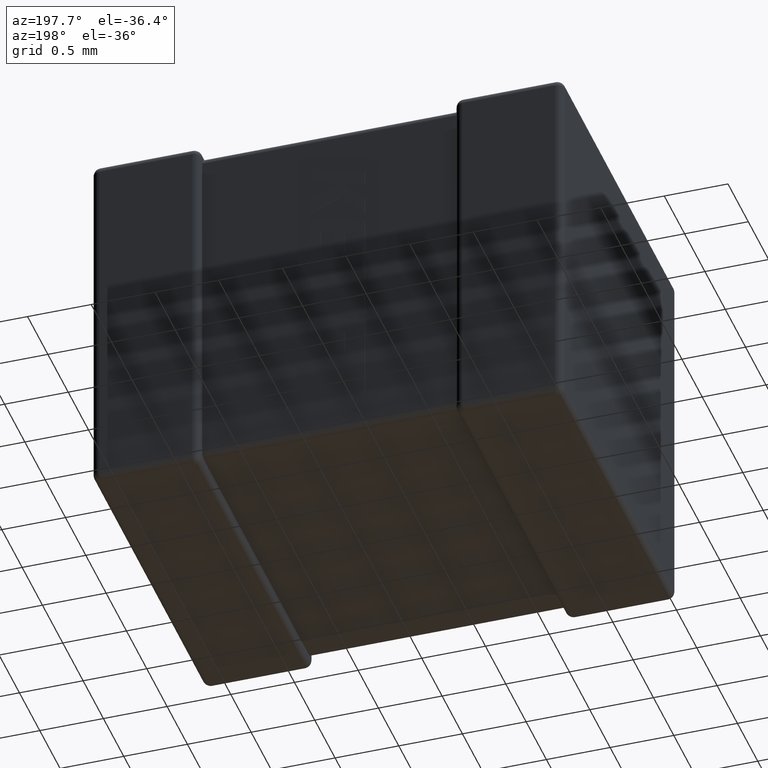
[diagram: clean part render]
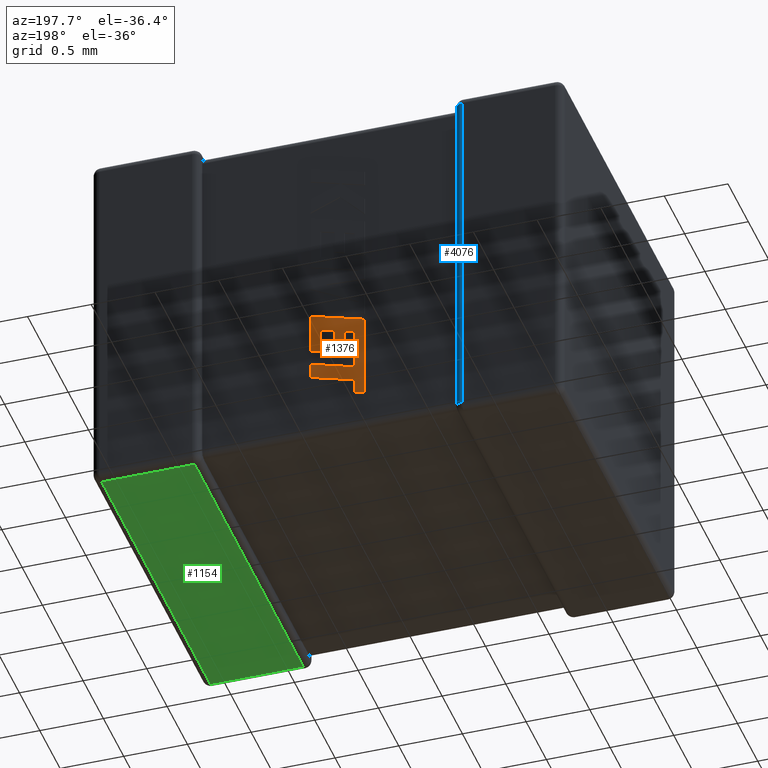
[diagram: same view with three faces highlighted in distinct colors, each labeled with its STEP entity id]
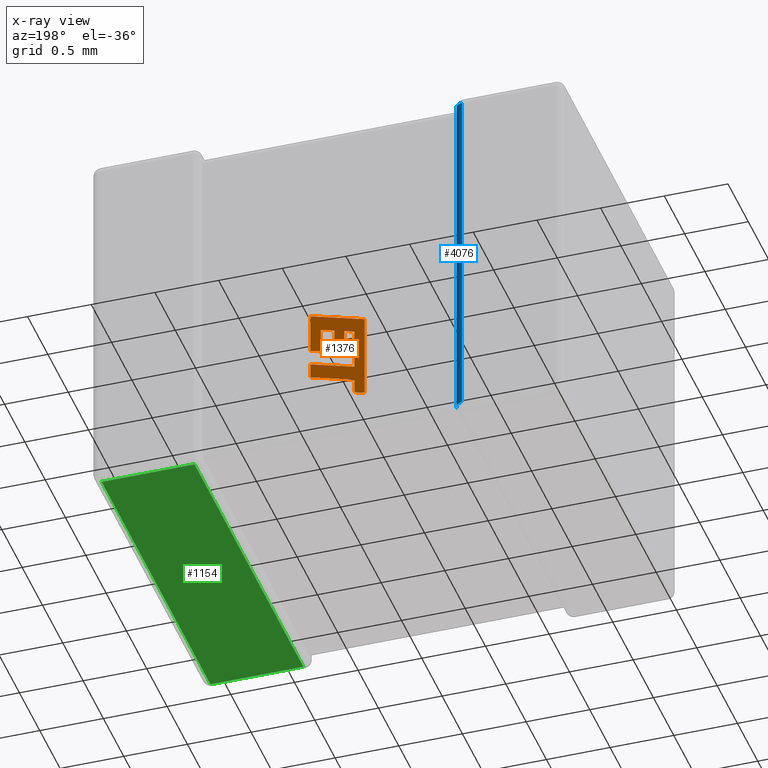
[diagram: x-ray of the same camera — body ghosted, the three highlighted faces saturated]
A machine part, auxiliary view with three faces highlighted in distinct colors.
The next image is the same camera in x-ray (body ghosted, the three faces saturated) — at least one of them is partly hidden behind the body in this view.
Their STEP definitions:

[orange] entity #1376 — the highlighted planar face has unit normal (0, 1, 0).
#47 = LINE ( 'NONE', #3592, #4006 ) ;
#62 = LINE ( 'NONE', #3655, #338 ) ;
#74 = EDGE_CURVE ( 'NONE', #2070, #2353, #47, .T. ) ;
#141 = CARTESIAN_POINT ( 'NONE',  ( 1.571668070840859244, 2.744679999999999787, -2.539415673646348903 ) ) ;
#160 = EDGE_LOOP ( 'NONE', ( #3538, #3382, #1093, #2689, #291, #2789, #1878, #589, #1620, #3119, #2460, #1167, #1811, #3325, #4515, #1012, #516 ) ) ;
#177 = VERTEX_POINT ( 'NONE', #2087 ) ;
#252 = DIRECTION ( 'NONE',  ( 0.000000000000000000, 1.000000000000000000, 0.000000000000000000 ) ) ;
#291 = ORIENTED_EDGE ( 'NONE', *, *, #2871, .T. ) ;
#294 = LINE ( 'NONE', #2991, #941 ) ;
#338 = VECTOR ( 'NONE', #2930, 1000.000000000000227 ) ;
#385 = DIRECTION ( 'NONE',  ( -0.9620200793798762140, 0.000000000000000000, -0.2729786930695083380 ) ) ;
#429 = VECTOR ( 'NONE', #674, 1000.000000000000000 ) ;
#453 = VERTEX_POINT ( 'NONE', #4221 ) ;
#510 = VERTEX_POINT ( 'NONE', #4168 ) ;
#516 = ORIENTED_EDGE ( 'NONE', *, *, #4402, .T. ) ;
#524 = CARTESIAN_POINT ( 'NONE',  ( 1.653994107163574201, 2.744679999999999787, -2.515756594331723939 ) ) ;
#562 = CARTESIAN_POINT ( 'NONE',  ( 1.571668070840859244, 2.744679999999999787, -1.855017605892900212 ) ) ;
#586 = LINE ( 'NONE', #2009, #429 ) ;
#589 = ORIENTED_EDGE ( 'NONE', *, *, #74, .T. ) ;
#621 = VERTEX_POINT ( 'NONE', #3640 ) ;
#674 = DIRECTION ( 'NONE',  ( 0.000000000000000000, 0.000000000000000000, -1.000000000000000000 ) ) ;
#693 = LINE ( 'NONE', #4003, #4353 ) ;
#697 = EDGE_CURVE ( 'NONE', #2318, #3907, #2181, .T. ) ;
#699 = LINE ( 'NONE', #3514, #2361 ) ;
#705 = VECTOR ( 'NONE', #1262, 999.9999999999998863 ) ;
#799 = DIRECTION ( 'NONE',  ( 0.000000000000000000, 0.000000000000000000, 1.000000000000000000 ) ) ;
#817 = CARTESIAN_POINT ( 'NONE',  ( 1.916874536184694167, 2.744679999999999787, -2.077515681823689953 ) ) ;
#828 = EDGE_CURVE ( 'NONE', #3907, #621, #1015, .T. ) ;
#873 = VECTOR ( 'NONE', #799, 1000.000000000000000 ) ;
#888 = VERTEX_POINT ( 'NONE', #1041 ) ;
#941 = VECTOR ( 'NONE', #1559, 1000.000000000000114 ) ;
#945 = DIRECTION ( 'NONE',  ( -0.9610876102172832836, 0.000000000000000000, -0.2762437428917280391 ) ) ;
#980 = DIRECTION ( 'NONE',  ( -0.9601763114346048011, 0.000000000000000000, -0.2793947940814875408 ) ) ;
#1002 = VECTOR ( 'NONE', #3089, 1000.000000000000227 ) ;
#1012 = ORIENTED_EDGE ( 'NONE', *, *, #3048, .T. ) ;
#1015 = LINE ( 'NONE', #3871, #3195 ) ;
#1041 = CARTESIAN_POINT ( 'NONE',  ( 1.653984840483830876, 2.744679999999999787, -2.277613578896279467 ) ) ;
#1093 = ORIENTED_EDGE ( 'NONE', *, *, #4005, .T. ) ;
#1167 = ORIENTED_EDGE ( 'NONE', *, *, #1871, .T. ) ;
#1194 = CARTESIAN_POINT ( 'NONE',  ( 1.653984840484889363, 2.744679999999999787, -2.399030846526291949 ) ) ;
#1262 = DIRECTION ( 'NONE',  ( -0.9610992334305259455, 0.000000000000000000, -0.2762033010288898471 ) ) ;
#1288 = CARTESIAN_POINT ( 'NONE',  ( 1.652832423856959831, 2.744679999999999787, -1.952634682780160613 ) ) ;
#1291 = CARTESIAN_POINT ( 'NONE',  ( -0.8630697648278080614, 2.744679999999998898, 0.006561855759162677285 ) ) ;
#1351 = DIRECTION ( 'NONE',  ( -0.9615323037684311291, 0.000000000000000000, -0.2746918797667187717 ) ) ;
#1365 = EDGE_CURVE ( 'NONE', #3575, #1378, #1709, .T. ) ;
#1376 = ADVANCED_FACE ( 'NONE', ( #4174 ), #1686, .T. ) ;
#1378 = VERTEX_POINT ( 'NONE', #3861 ) ;
#1398 = CARTESIAN_POINT ( 'NONE',  ( 1.653984840483830876, 2.744679999999999787, -2.277613578896279467 ) ) ;
#1436 = VERTEX_POINT ( 'NONE', #4536 ) ;
#1559 = DIRECTION ( 'NONE',  ( 0.004650693823668811122, 0.000000000000000000, -0.9999891854650021505 ) ) ;
#1562 = EDGE_CURVE ( 'NONE', #2353, #510, #693, .T. ) ;
#1603 = CARTESIAN_POINT ( 'NONE',  ( 1.810929984928250747, 2.744679999999999787, -2.090006892864151755 ) ) ;
#1620 = ORIENTED_EDGE ( 'NONE', *, *, #1562, .T. ) ;
#1686 = PLANE ( 'NONE',  #4282 ) ;
#1709 = LINE ( 'NONE', #2805, #3976 ) ;
#1750 = VECTOR ( 'NONE', #4637, 1000.000000000000000 ) ;
#1788 = EDGE_CURVE ( 'NONE', #1378, #888, #294, .T. ) ;
#1811 = ORIENTED_EDGE ( 'NONE', *, *, #3691, .T. ) ;
#1871 = EDGE_CURVE ( 'NONE', #4344, #3210, #2245, .T. ) ;
#1878 = ORIENTED_EDGE ( 'NONE', *, *, #3916, .T. ) ;
#1933 = CARTESIAN_POINT ( 'NONE',  ( 1.916874536184694167, 2.744679999999999787, -1.876829261524544989 ) ) ;
#1985 = VECTOR ( 'NONE', #980, 1000.000000000000114 ) ;
#1988 = CARTESIAN_POINT ( 'NONE',  ( 1.810929984928250747, 2.744679999999999787, -1.907074688672119933 ) ) ;
#2001 = DIRECTION ( 'NONE',  ( 0.000000000000000000, 0.000000000000000000, -1.000000000000000000 ) ) ;
#2009 = CARTESIAN_POINT ( 'NONE',  ( 1.998000000000007548, 2.744679999999999787, -1.732389587493627037 ) ) ;
#2014 = DIRECTION ( 'NONE',  ( 0.000000000000000000, 0.000000000000000000, 1.000000000000000000 ) ) ;
#2065 = DIRECTION ( 'NONE',  ( 0.000000000000000000, 0.000000000000000000, -1.000000000000000000 ) ) ;
#2070 = VERTEX_POINT ( 'NONE', #141 ) ;
#2074 = LINE ( 'NONE', #2760, #4130 ) ;
#2087 = CARTESIAN_POINT ( 'NONE',  ( 1.653994107163574201, 2.744679999999999787, -2.515756594331723939 ) ) ;
#2120 = EDGE_CURVE ( 'NONE', #2745, #453, #699, .T. ) ;
#2152 = DIRECTION ( 'NONE',  ( 0.000000000000000000, 0.000000000000000000, 1.000000000000000000 ) ) ;
#2181 = LINE ( 'NONE', #2373, #2634 ) ;
#2245 = LINE ( 'NONE', #3684, #873 ) ;
#2318 = VERTEX_POINT ( 'NONE', #1988 ) ;
#2353 = VERTEX_POINT ( 'NONE', #562 ) ;
#2361 = VECTOR ( 'NONE', #2065, 1000.000000000000000 ) ;
#2373 = CARTESIAN_POINT ( 'NONE',  ( 1.810929984928250747, 2.744679999999999787, -1.907074688672119933 ) ) ;
#2435 = VERTEX_POINT ( 'NONE', #2947 ) ;
#2441 = CARTESIAN_POINT ( 'NONE',  ( 1.998000000000007548, 2.744679999999999787, -2.300151166603599417 ) ) ;
#2460 = ORIENTED_EDGE ( 'NONE', *, *, #2754, .T. ) ;
#2634 = VECTOR ( 'NONE', #2001, 1000.000000000000000 ) ;
#2676 = EDGE_CURVE ( 'NONE', #510, #2435, #586, .T. ) ;
#2689 = ORIENTED_EDGE ( 'NONE', *, *, #2120, .T. ) ;
#2745 = VERTEX_POINT ( 'NONE', #2898 ) ;
#2754 = EDGE_CURVE ( 'NONE', #2435, #4344, #4359, .T. ) ;
#2760 = CARTESIAN_POINT ( 'NONE',  ( 1.732130095272591985, 2.744679999999999787, -2.112518554438171492 ) ) ;
#2789 = ORIENTED_EDGE ( 'NONE', *, *, #4323, .T. ) ;
#2805 = CARTESIAN_POINT ( 'NONE',  ( 1.652832423856959831, 2.744679999999999787, -1.952634682780160613 ) ) ;
#2871 = EDGE_CURVE ( 'NONE', #453, #3927, #3343, .T. ) ;
#2898 = CARTESIAN_POINT ( 'NONE',  ( 1.998000000000007548, 2.744679999999999787, -2.178705380226704680 ) ) ;
#2930 = DIRECTION ( 'NONE',  ( 7.938847109757213207E-05, 0.000000000000000000, -0.9999999968487351953 ) ) ;
#2947 = CARTESIAN_POINT ( 'NONE',  ( 1.998000000000007548, 2.744679999999999787, -2.054495868036396722 ) ) ;
#2991 = CARTESIAN_POINT ( 'NONE',  ( 1.653382057883783673, 2.744679999999999787, -2.148003653132934510 ) ) ;
#3048 = EDGE_CURVE ( 'NONE', #621, #1436, #2074, .T. ) ;
#3089 = DIRECTION ( 'NONE',  ( -0.9615825319869173438, 0.000000000000000000, -0.2745159998572559434 ) ) ;
#3116 = CARTESIAN_POINT ( 'NONE',  ( 1.916874536184694167, 2.744679999999999787, -1.876829261524544989 ) ) ;
#3119 = ORIENTED_EDGE ( 'NONE', *, *, #2676, .T. ) ;
#3126 = VECTOR ( 'NONE', #385, 1000.000000000000000 ) ;
#3149 = DIRECTION ( 'NONE',  ( 0.002813301676014986867, 0.000000000000000000, -0.9999960426590095430 ) ) ;
#3181 = LINE ( 'NONE', #1398, #1750 ) ;
#3195 = VECTOR ( 'NONE', #1351, 1000.000000000000114 ) ;
#3209 = CARTESIAN_POINT ( 'NONE',  ( 1.998000000000007548, 2.744679999999999787, -2.054495868036396722 ) ) ;
#3210 = VERTEX_POINT ( 'NONE', #1933 ) ;
#3325 = ORIENTED_EDGE ( 'NONE', *, *, #697, .T. ) ;
#3343 = LINE ( 'NONE', #2441, #4427 ) ;
#3382 = ORIENTED_EDGE ( 'NONE', *, *, #1788, .T. ) ;
#3473 = LINE ( 'NONE', #3116, #1002 ) ;
#3514 = CARTESIAN_POINT ( 'NONE',  ( 1.998000000000007548, 2.744679999999999787, -2.178705380226704680 ) ) ;
#3538 = ORIENTED_EDGE ( 'NONE', *, *, #1365, .T. ) ;
#3575 = VERTEX_POINT ( 'NONE', #1288 ) ;
#3592 = CARTESIAN_POINT ( 'NONE',  ( 1.571668070840859244, 2.744679999999999787, -2.539415673646348903 ) ) ;
#3640 = CARTESIAN_POINT ( 'NONE',  ( 1.732130095272591985, 2.744679999999999787, -2.112518554438171492 ) ) ;
#3655 = CARTESIAN_POINT ( 'NONE',  ( 1.653984840484889363, 2.744679999999999787, -2.399030846526291949 ) ) ;
#3684 = CARTESIAN_POINT ( 'NONE',  ( 1.916874536184694167, 2.744679999999999787, -2.077515681823689953 ) ) ;
#3691 = EDGE_CURVE ( 'NONE', #3210, #2318, #3473, .T. ) ;
#3761 = LINE ( 'NONE', #524, #705 ) ;
#3781 = DIRECTION ( 'NONE',  ( 0.000000000000000000, 0.000000000000000000, 1.000000000000000000 ) ) ;
#3861 = CARTESIAN_POINT ( 'NONE',  ( 1.653382057883783673, 2.744679999999999787, -2.148003653132934510 ) ) ;
#3871 = CARTESIAN_POINT ( 'NONE',  ( 1.810929984928250747, 2.744679999999999787, -2.090006892864151755 ) ) ;
#3907 = VERTEX_POINT ( 'NONE', #1603 ) ;
#3916 = EDGE_CURVE ( 'NONE', #177, #2070, #3761, .T. ) ;
#3927 = VERTEX_POINT ( 'NONE', #1194 ) ;
#3976 = VECTOR ( 'NONE', #3149, 1000.000000000000114 ) ;
#3985 = DIRECTION ( 'NONE',  ( 0.9610348236706638403, 0.000000000000000000, 0.2764273280489756845 ) ) ;
#4003 = CARTESIAN_POINT ( 'NONE',  ( 1.571668070840859244, 2.744679999999999787, -1.855017605892900212 ) ) ;
#4005 = EDGE_CURVE ( 'NONE', #888, #2745, #3181, .T. ) ;
#4006 = VECTOR ( 'NONE', #2152, 1000.000000000000000 ) ;
#4130 = VECTOR ( 'NONE', #3781, 1000.000000000000000 ) ;
#4168 = CARTESIAN_POINT ( 'NONE',  ( 1.998000000000007548, 2.744679999999999787, -1.732389587493627037 ) ) ;
#4174 = FACE_OUTER_BOUND ( 'NONE', #160, .T. ) ;
#4207 = LINE ( 'NONE', #4538, #1985 ) ;
#4221 = CARTESIAN_POINT ( 'NONE',  ( 1.998000000000007548, 2.744679999999999787, -2.300151166603599417 ) ) ;
#4282 = AXIS2_PLACEMENT_3D ( 'NONE', #1291, #252, #2014 ) ;
#4323 = EDGE_CURVE ( 'NONE', #3927, #177, #62, .T. ) ;
#4344 = VERTEX_POINT ( 'NONE', #817 ) ;
#4353 = VECTOR ( 'NONE', #3985, 1000.000000000000000 ) ;
#4359 = LINE ( 'NONE', #3209, #3126 ) ;
#4402 = EDGE_CURVE ( 'NONE', #1436, #3575, #4207, .T. ) ;
#4427 = VECTOR ( 'NONE', #945, 1000.000000000000114 ) ;
#4515 = ORIENTED_EDGE ( 'NONE', *, *, #828, .T. ) ;
#4536 = CARTESIAN_POINT ( 'NONE',  ( 1.732130095272591985, 2.744679999999999787, -1.929560424112802597 ) ) ;
#4538 = CARTESIAN_POINT ( 'NONE',  ( 1.732130095272591985, 2.744679999999999787, -1.929560424112802597 ) ) ;
#4637 = DIRECTION ( 'NONE',  ( 0.9610664548998939516, 0.000000000000000000, 0.2763173343569855223 ) ) ;

[blue] entity #4076 — the highlighted cylindrical surface (edge-blend (fillet) strip) has radius 0.0603 mm, axis along (0, 0, 1).
#36 = AXIS2_PLACEMENT_3D ( 'NONE', #144, #3294, #2579 ) ;
#38 = CARTESIAN_POINT ( 'NONE',  ( 0.8499999999999999778, 2.739679999999999893, -2.899999999999999911 ) ) ;
#65 = DIRECTION ( 'NONE',  ( 0.000000000000000000, 0.000000000000000000, -1.000000000000000000 ) ) ;
#144 = CARTESIAN_POINT ( 'NONE',  ( 0.7896799999999999375, 2.739679999999999893, -2.899999999999999911 ) ) ;
#168 = ORIENTED_EDGE ( 'NONE', *, *, #959, .F. ) ;
#333 = VECTOR ( 'NONE', #3003, 1000.000000000000000 ) ;
#427 = CARTESIAN_POINT ( 'NONE',  ( 0.7896800000000000486, 2.799999999999999822, 0.000000000000000000 ) ) ;
#445 = FACE_OUTER_BOUND ( 'NONE', #4066, .T. ) ;
#521 = VERTEX_POINT ( 'NONE', #1637 ) ;
#622 = LINE ( 'NONE', #2863, #2069 ) ;
#648 = VECTOR ( 'NONE', #2271, 1000.000000000000000 ) ;
#735 = DIRECTION ( 'NONE',  ( 0.000000000000000000, 0.000000000000000000, 1.000000000000000000 ) ) ;
#739 = DIRECTION ( 'NONE',  ( -0.000000000000000000, 1.123385871690053781E-16, 1.000000000000000000 ) ) ;
#777 = EDGE_CURVE ( 'NONE', #1891, #2216, #4099, .T. ) ;
#800 = CARTESIAN_POINT ( 'NONE',  ( 0.7896799999999999375, 2.799999999999999822, -0.06031999999999999862 ) ) ;
#846 = CARTESIAN_POINT ( 'NONE',  ( 0.8499999999999999778, 2.739679999999999893, -2.899999999999999911 ) ) ;
#959 = EDGE_CURVE ( 'NONE', #1405, #1891, #622, .T. ) ;
#965 = ORIENTED_EDGE ( 'NONE', *, *, #3816, .F. ) ;
#1076 = ORIENTED_EDGE ( 'NONE', *, *, #4550, .F. ) ;
#1082 = CARTESIAN_POINT ( 'NONE',  ( 0.8499999999999999778, 2.739679999999999893, -0.1206399999999999834 ) ) ;
#1138 = CARTESIAN_POINT ( 'NONE',  ( 0.7896799999999999375, 2.739679999999999893, -2.839679999999999982 ) ) ;
#1405 = VERTEX_POINT ( 'NONE', #3123 ) ;
#1440 = CARTESIAN_POINT ( 'NONE',  ( 0.8500000000000000888, 2.739679999999999893, -0.06031999999999999168 ) ) ;
#1491 = ORIENTED_EDGE ( 'NONE', *, *, #3216, .F. ) ;
#1510 = DIRECTION ( 'NONE',  ( -1.000000000000000000, 0.000000000000000000, 0.000000000000000000 ) ) ;
#1572 = LINE ( 'NONE', #38, #333 ) ;
#1593 = ORIENTED_EDGE ( 'NONE', *, *, #1820, .F. ) ;
#1637 = CARTESIAN_POINT ( 'NONE',  ( 0.7896799999999999375, 2.799999999999999822, -2.839679999999999982 ) ) ;
#1820 = EDGE_CURVE ( 'NONE', #521, #1405, #2666, .T. ) ;
#1891 = VERTEX_POINT ( 'NONE', #2552 ) ;
#2069 = VECTOR ( 'NONE', #735, 1000.000000000000000 ) ;
#2182 = DIRECTION ( 'NONE',  ( 0.000000000000000000, -1.000000000000000000, 1.123385871690053535E-16 ) ) ;
#2195 = VERTEX_POINT ( 'NONE', #1440 ) ;
#2216 = VERTEX_POINT ( 'NONE', #1082 ) ;
#2246 = LINE ( 'NONE', #427, #3583 ) ;
#2271 = DIRECTION ( 'NONE',  ( -0.000000000000000000, -0.000000000000000000, 1.000000000000000000 ) ) ;
#2552 = CARTESIAN_POINT ( 'NONE',  ( 0.8499999999999999778, 2.739679999999999893, -2.779359999999999609 ) ) ;
#2579 = DIRECTION ( 'NONE',  ( 1.000000000000000000, 0.000000000000000000, 0.000000000000000000 ) ) ;
#2586 = AXIS2_PLACEMENT_3D ( 'NONE', #1138, #65, #1510 ) ;
#2666 = CIRCLE ( 'NONE', #2586, 0.06031999999999999168 ) ;
#2863 = CARTESIAN_POINT ( 'NONE',  ( 0.8499999999999999778, 2.739679999999999893, -2.899999999999999911 ) ) ;
#3003 = DIRECTION ( 'NONE',  ( 0.000000000000000000, 0.000000000000000000, 1.000000000000000000 ) ) ;
#3123 = CARTESIAN_POINT ( 'NONE',  ( 0.8499999999999999778, 2.739679999999999893, -2.839679999999999982 ) ) ;
#3216 = EDGE_CURVE ( 'NONE', #4072, #521, #2246, .T. ) ;
#3293 = DIRECTION ( 'NONE',  ( -0.000000000000000000, -0.000000000000000000, -1.000000000000000000 ) ) ;
#3294 = DIRECTION ( 'NONE',  ( 0.000000000000000000, 0.000000000000000000, 1.000000000000000000 ) ) ;
#3408 = AXIS2_PLACEMENT_3D ( 'NONE', #3982, #739, #2182 ) ;
#3567 = CIRCLE ( 'NONE', #3408, 0.06031999999999999168 ) ;
#3583 = VECTOR ( 'NONE', #3293, 1000.000000000000000 ) ;
#3816 = EDGE_CURVE ( 'NONE', #2195, #4072, #3567, .T. ) ;
#3969 = ORIENTED_EDGE ( 'NONE', *, *, #777, .F. ) ;
#3982 = CARTESIAN_POINT ( 'NONE',  ( 0.7896799999999999375, 2.739679999999999893, -0.06031999999999999168 ) ) ;
#4066 = EDGE_LOOP ( 'NONE', ( #168, #1593, #1491, #965, #1076, #3969 ) ) ;
#4072 = VERTEX_POINT ( 'NONE', #800 ) ;
#4076 = ADVANCED_FACE ( 'NONE', ( #445 ), #4096, .T. ) ;
#4096 = CYLINDRICAL_SURFACE ( 'NONE', #36, 0.06031999999999999168 ) ;
#4099 = LINE ( 'NONE', #846, #648 ) ;
#4550 = EDGE_CURVE ( 'NONE', #2216, #2195, #1572, .T. ) ;

[green] entity #1154 — the highlighted planar face has unit normal (0, 0, 1).
#37 = DIRECTION ( 'NONE',  ( 0.000000000000000000, 1.000000000000000000, 0.000000000000000000 ) ) ;
#112 = CARTESIAN_POINT ( 'NONE',  ( 3.699999999999999734, 0.06031999999999999862, -2.899999999999999911 ) ) ;
#392 = EDGE_LOOP ( 'NONE', ( #4032, #2331, #3435, #4091 ) ) ;
#548 = CARTESIAN_POINT ( 'NONE',  ( 3.639679999999999804, 2.739679999999999893, -2.899999999999999911 ) ) ;
#593 = EDGE_CURVE ( 'NONE', #3014, #3083, #2490, .T. ) ;
#737 = CARTESIAN_POINT ( 'NONE',  ( 3.639679999999999804, 0.06031999999999999862, -2.899999999999999911 ) ) ;
#767 = VERTEX_POINT ( 'NONE', #2301 ) ;
#1100 = EDGE_CURVE ( 'NONE', #3083, #4625, #1579, .T. ) ;
#1136 = EDGE_CURVE ( 'NONE', #767, #3014, #3733, .T. ) ;
#1154 = ADVANCED_FACE ( 'NONE', ( #2721 ), #4449, .F. ) ;
#1400 = CARTESIAN_POINT ( 'NONE',  ( 3.639679999999999804, 0.000000000000000000, -2.899999999999999911 ) ) ;
#1429 = DIRECTION ( 'NONE',  ( -0.000000000000000000, -1.000000000000000000, 0.000000000000000000 ) ) ;
#1506 = EDGE_CURVE ( 'NONE', #4625, #767, #2186, .T. ) ;
#1520 = VECTOR ( 'NONE', #1429, 1000.000000000000000 ) ;
#1579 = LINE ( 'NONE', #112, #2206 ) ;
#1701 = VECTOR ( 'NONE', #37, 1000.000000000000000 ) ;
#2028 = CARTESIAN_POINT ( 'NONE',  ( 2.910319999999999574, 0.06031999999999999862, -2.899999999999999911 ) ) ;
#2186 = LINE ( 'NONE', #4646, #1701 ) ;
#2206 = VECTOR ( 'NONE', #2314, 1000.000000000000000 ) ;
#2301 = CARTESIAN_POINT ( 'NONE',  ( 2.910319999999999574, 2.739679999999999893, -2.899999999999999911 ) ) ;
#2314 = DIRECTION ( 'NONE',  ( -1.000000000000000000, -0.000000000000000000, 0.000000000000000000 ) ) ;
#2331 = ORIENTED_EDGE ( 'NONE', *, *, #1506, .T. ) ;
#2490 = LINE ( 'NONE', #1400, #1520 ) ;
#2721 = FACE_OUTER_BOUND ( 'NONE', #392, .T. ) ;
#2970 = VECTOR ( 'NONE', #3008, 1000.000000000000000 ) ;
#3008 = DIRECTION ( 'NONE',  ( 1.000000000000000000, -0.000000000000000000, -0.000000000000000000 ) ) ;
#3014 = VERTEX_POINT ( 'NONE', #548 ) ;
#3029 = CARTESIAN_POINT ( 'NONE',  ( 3.699999999999999734, 0.000000000000000000, -2.899999999999999911 ) ) ;
#3083 = VERTEX_POINT ( 'NONE', #737 ) ;
#3333 = DIRECTION ( 'NONE',  ( 0.000000000000000000, 0.000000000000000000, 1.000000000000000000 ) ) ;
#3435 = ORIENTED_EDGE ( 'NONE', *, *, #1136, .T. ) ;
#3588 = AXIS2_PLACEMENT_3D ( 'NONE', #3029, #3333, #4493 ) ;
#3733 = LINE ( 'NONE', #3756, #2970 ) ;
#3756 = CARTESIAN_POINT ( 'NONE',  ( 3.699999999999999734, 2.739679999999999893, -2.899999999999999911 ) ) ;
#4032 = ORIENTED_EDGE ( 'NONE', *, *, #1100, .T. ) ;
#4091 = ORIENTED_EDGE ( 'NONE', *, *, #593, .T. ) ;
#4449 = PLANE ( 'NONE',  #3588 ) ;
#4493 = DIRECTION ( 'NONE',  ( 1.000000000000000000, 0.000000000000000000, -0.000000000000000000 ) ) ;
#4625 = VERTEX_POINT ( 'NONE', #2028 ) ;
#4646 = CARTESIAN_POINT ( 'NONE',  ( 2.910319999999999574, 0.000000000000000000, -2.899999999999999911 ) ) ;